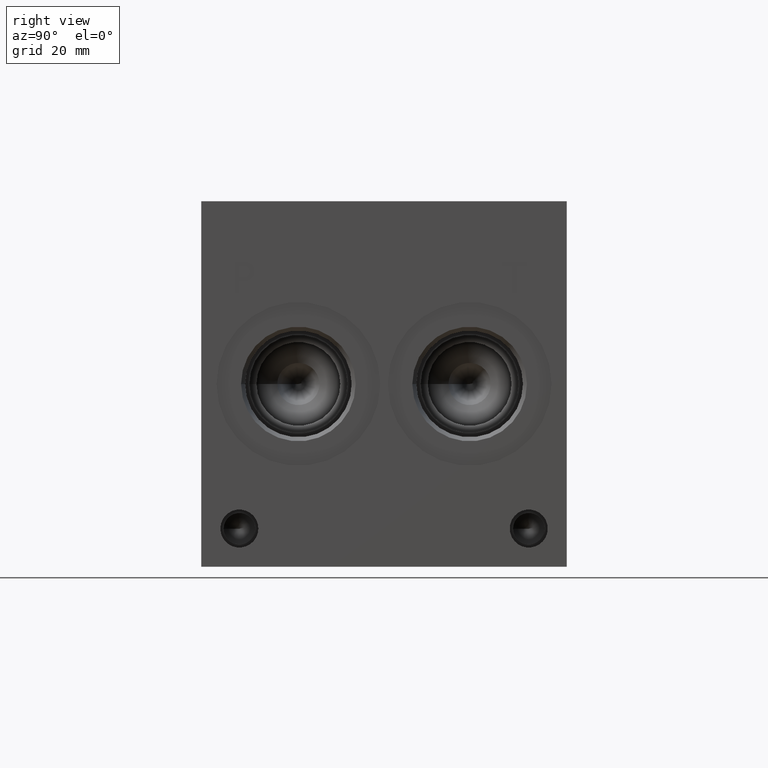
[diagram: clean part render]
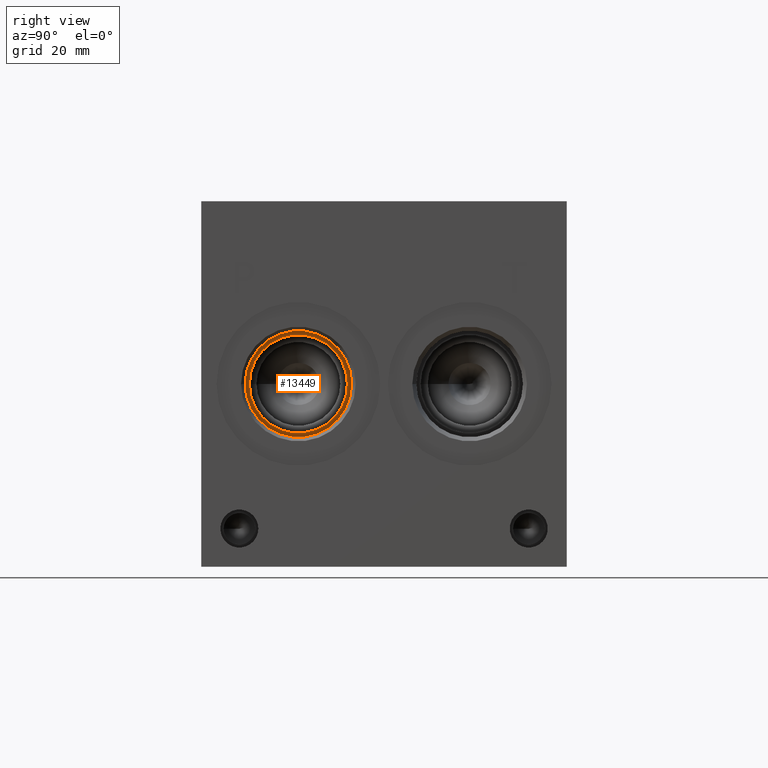
[diagram: same view with one face highlighted and labeled with its STEP entity id]
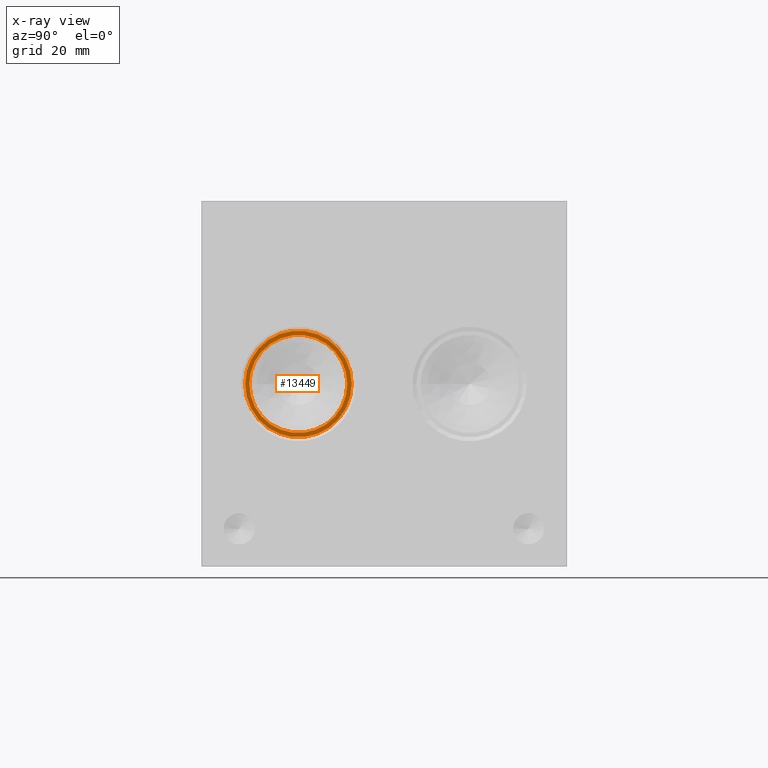
[diagram: x-ray of the same camera — body ghosted, the highlighted face saturated]
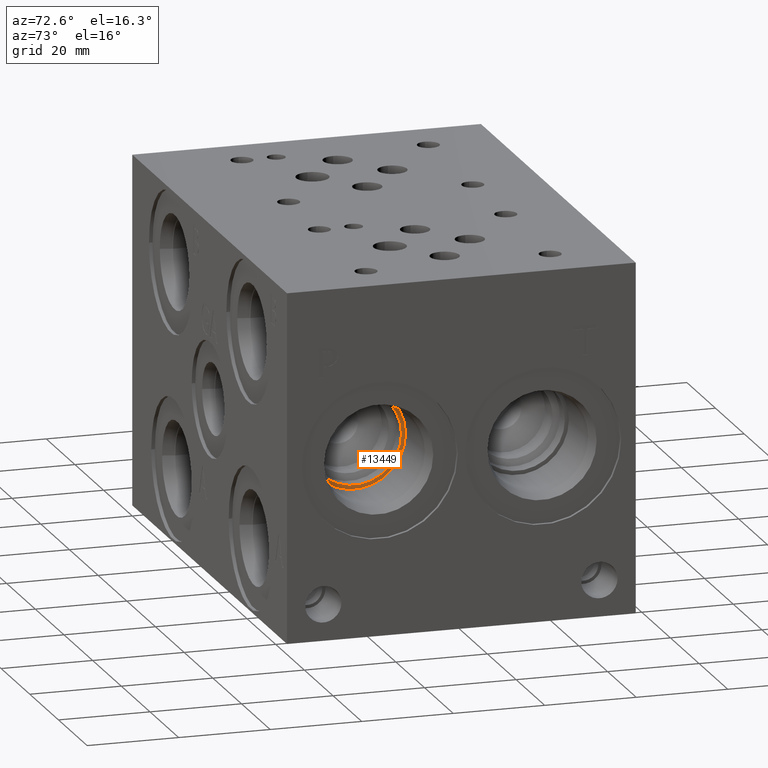
[diagram: same view with one face highlighted and labeled with its STEP entity id]
A machine part, right view. The second image highlights one B-rep face of the part: STEP entity #13449.
The next image is the same camera in x-ray: the body ghosted, the highlighted face saturated — about 0% of this face is hidden behind the body in this view.
A second angle (auxiliary view) of the same face is appended — the face is thin or edge-on in the first view.
In plain terms, the highlighted planar face has unit normal (1, 0, 0).
Its self-contained STEP definition (entity closure, byte-faithful):
#437=CIRCLE('',#14245,11.1125);
#438=CIRCLE('',#14246,11.1125);
#439=CIRCLE('',#14247,10.2235);
#577=FACE_BOUND('',#2599,.T.);
#1815=FACE_OUTER_BOUND('',#2598,.T.);
#2598=EDGE_LOOP('',(#11685,#11686));
#2599=EDGE_LOOP('',(#11687));
#6255=VERTEX_POINT('',#23302);
#6256=VERTEX_POINT('',#23303);
#6257=VERTEX_POINT('',#23306);
#8102=EDGE_CURVE('',#6255,#6256,#437,.T.);
#8103=EDGE_CURVE('',#6256,#6255,#438,.T.);
#8104=EDGE_CURVE('',#6257,#6257,#439,.T.);
#11685=ORIENTED_EDGE('',*,*,#8102,.T.);
#11686=ORIENTED_EDGE('',*,*,#8103,.T.);
#11687=ORIENTED_EDGE('',*,*,#8104,.F.);
#12291=PLANE('',#14244);
#13449=ADVANCED_FACE('',(#1815,#577),#12291,.T.);
#14244=AXIS2_PLACEMENT_3D('',#23301,#16961,#16962);
#14245=AXIS2_PLACEMENT_3D('',#23304,#16963,#16964);
#14246=AXIS2_PLACEMENT_3D('',#23305,#16965,#16966);
#14247=AXIS2_PLACEMENT_3D('',#23307,#16967,#16968);
#16961=DIRECTION('center_axis',(1.,0.,0.));
#16962=DIRECTION('ref_axis',(0.,1.,0.));
#16963=DIRECTION('center_axis',(1.,0.,0.));
#16964=DIRECTION('ref_axis',(0.,1.,0.));
#16965=DIRECTION('center_axis',(1.,0.,0.));
#16966=DIRECTION('ref_axis',(0.,1.,0.));
#16967=DIRECTION('center_axis',(1.,0.,0.));
#16968=DIRECTION('ref_axis',(0.,1.,0.));
#23301=CARTESIAN_POINT('Origin',(90.5002,20.2438,38.1));
#23302=CARTESIAN_POINT('',(90.5002,31.3563,38.1));
#23303=CARTESIAN_POINT('',(90.5002,9.1313,38.1));
#23304=CARTESIAN_POINT('Origin',(90.5002,20.2438,38.1));
#23305=CARTESIAN_POINT('Origin',(90.5002,20.2438,38.1));
#23306=CARTESIAN_POINT('',(90.5002,10.0203,38.1));
#23307=CARTESIAN_POINT('Origin',(90.5002,20.2438,38.1));